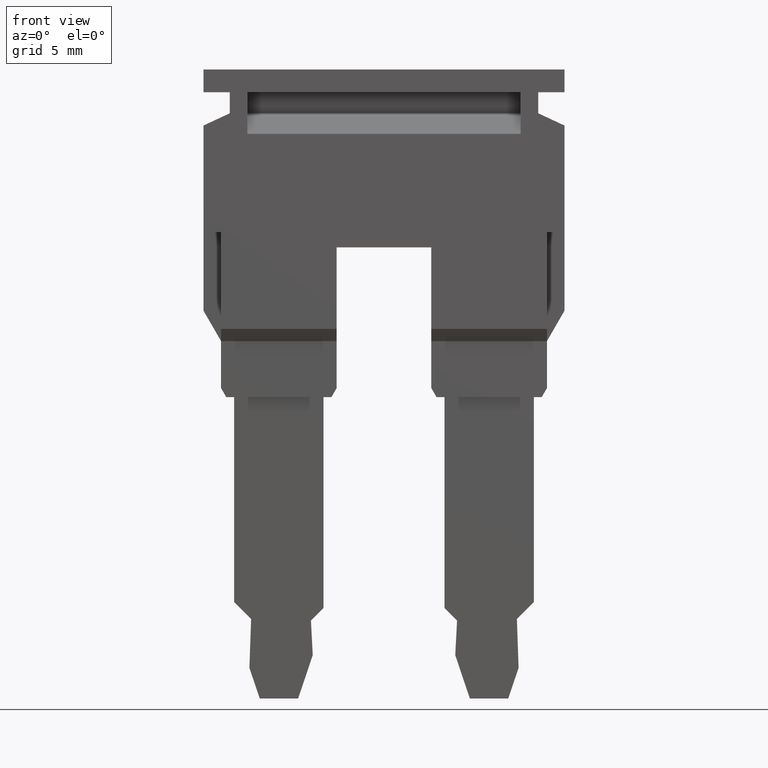
[diagram: clean part render]
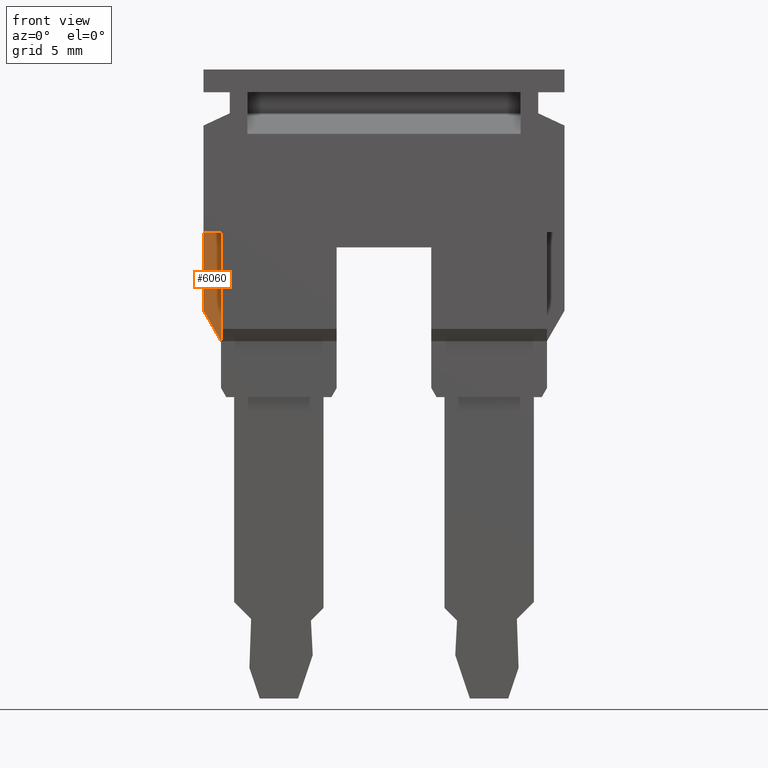
[diagram: same view with one face highlighted and labeled with its STEP entity id]
A machine part, front view. The second image highlights one B-rep face of the part: STEP entity #6060.
In plain terms, the highlighted planar face has unit normal (-0, 1, -0).
Its self-contained STEP definition (entity closure, byte-faithful):
#2920=CARTESIAN_POINT('',(-10.55,36.1960271983001,-7.39999999999998));
#2930=VERTEX_POINT('',#2920);
#2960=CARTESIAN_POINT('',(-10.55,36.1960271983001,-5.6));
#2970=DIRECTION('',(2.44929359829471E-16,0.,1.));
#2980=VECTOR('',#2970,1.);
#2990=LINE('',#2960,#2980);
#3000=CARTESIAN_POINT('',(-10.55,36.1960271983001,-8.39999999999998));
#3010=VERTEX_POINT('',#3000);
#3020=EDGE_CURVE('',#3010,#2930,#2990,.T.);
#5760=CARTESIAN_POINT('',(-10.55,42.9960271983001,1.90000000000001));
#5770=DIRECTION('',(1.,1.22464679914735E-16,-2.44929359829471E-16));
#5780=DIRECTION('',(1.22464679914735E-16,-1.,0.));
#5790=AXIS2_PLACEMENT_3D('',#5760,#5770,#5780);
#5800=PLANE('',#5790);
#5810=ORIENTED_EDGE('',*,*,#3020,.F.);
#5820=CARTESIAN_POINT('',(-10.55,26.7540884716326,-7.39999999999998));
#5830=DIRECTION('',(1.22464679914735E-16,-1.,0.));
#5840=VECTOR('',#5830,1.);
#5850=LINE('',#5820,#5840);
#5860=CARTESIAN_POINT('',(-10.55,29.9960271983001,-7.39999999999998));
#5870=VERTEX_POINT('',#5860);
#5880=EDGE_CURVE('',#2930,#5870,#5850,.T.);
#5890=ORIENTED_EDGE('',*,*,#5880,.F.);
#5900=CARTESIAN_POINT('',(-10.55,26.7540884716326,-5.52826580346223));
#5910=DIRECTION('',(2.22044604925031E-16,-0.866025403784439,0.5));
#5920=VECTOR('',#5910,1.);
#5930=LINE('',#5900,#5920);
#5940=CARTESIAN_POINT('',(-10.55,31.728078005869,-8.39999999999998));
#5950=VERTEX_POINT('',#5940);
#5960=EDGE_CURVE('',#5950,#5870,#5930,.T.);
#5970=ORIENTED_EDGE('',*,*,#5960,.T.);
#5980=CARTESIAN_POINT('',(-10.55,26.7540884716326,-8.39999999999998));
#5990=DIRECTION('',(1.22464679914735E-16,-1.,0.));
#6000=VECTOR('',#5990,1.);
#6010=LINE('',#5980,#6000);
#6020=EDGE_CURVE('',#3010,#5950,#6010,.T.);
#6030=ORIENTED_EDGE('',*,*,#6020,.T.);
#6040=EDGE_LOOP('',(#6030,#5970,#5890,#5810));
#6050=FACE_OUTER_BOUND('',#6040,.T.);
#6060=ADVANCED_FACE('',(#6050),#5800,.F.);